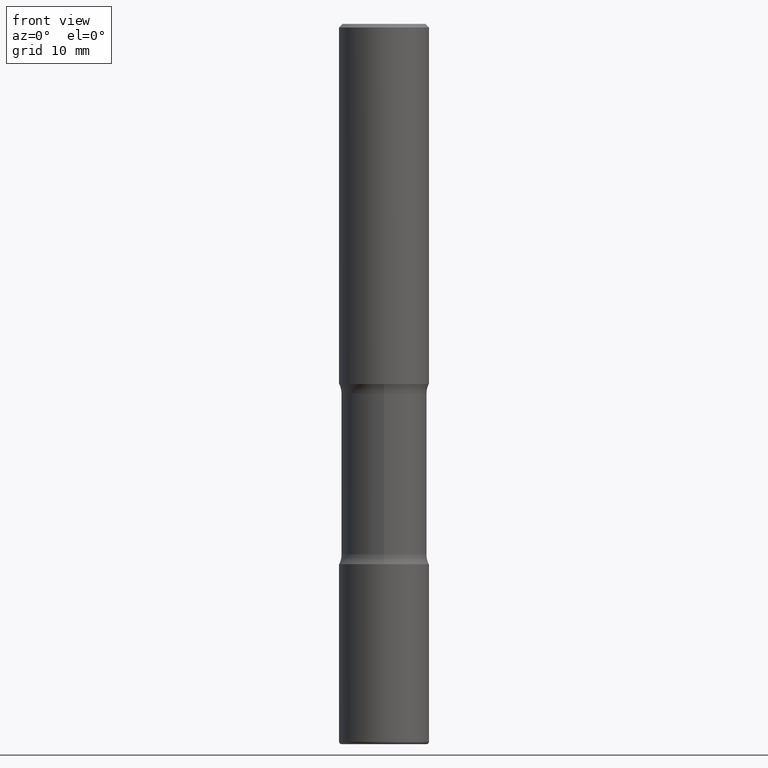
[diagram: clean part render]
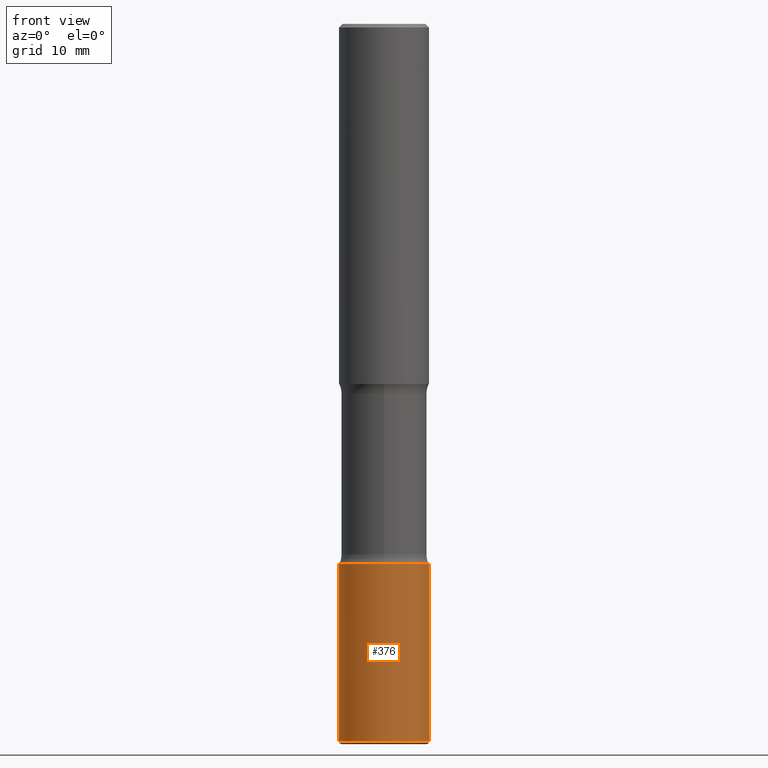
[diagram: same view with one face highlighted and labeled with its STEP entity id]
A machine part, front view. The second image highlights one B-rep face of the part: STEP entity #376.
In plain terms, the highlighted cylindrical surface (partial cylindrical patch) has radius 6.35 mm, axis along (-0, 0, 1).
Its self-contained STEP definition (entity closure, byte-faithful):
#27 = AXIS2_PLACEMENT_3D ( 'NONE', #379, #455, #446 ) ;
#31 = DIRECTION ( 'NONE',  ( -2.445468806185136877E-29, 3.491481338843145188E-15, 1.000000000000000000 ) ) ;
#43 = AXIS2_PLACEMENT_3D ( 'NONE', #382, #267, #87 ) ;
#50 = ORIENTED_EDGE ( 'NONE', *, *, #182, .T. ) ;
#74 = LINE ( 'NONE', #391, #125 ) ;
#76 = CARTESIAN_POINT ( 'NONE',  ( -0.2500000000000005551, -1.213719629588967887E-14, -3.984999999999999876 ) ) ;
#87 = DIRECTION ( 'NONE',  ( 1.000000000000000000, -6.982962677686270655E-15, 0.000000000000000000 ) ) ;
#93 = CYLINDRICAL_SURFACE ( 'NONE', #109, 0.2500000000000003331 ) ;
#109 = AXIS2_PLACEMENT_3D ( 'NONE', #271, #445, #140 ) ;
#125 = VECTOR ( 'NONE', #31, 39.37007874015748143 ) ;
#140 = DIRECTION ( 'NONE',  ( 1.000000000000000000, -6.982962677686266711E-15, 4.876176775795935793E-29 ) ) ;
#145 = EDGE_CURVE ( 'NONE', #424, #324, #461, .T. ) ;
#159 = CARTESIAN_POINT ( 'NONE',  ( 0.2500000000000005551, -1.565929380471150390E-14, -3.984999999999999876 ) ) ;
#161 = CARTESIAN_POINT ( 'NONE',  ( -0.2500000000000002776, -1.041764173650943238E-14, -3.000000000000000444 ) ) ;
#182 = EDGE_CURVE ( 'NONE', #492, #258, #290, .T. ) ;
#231 = DIRECTION ( 'NONE',  ( -2.445468806185136877E-29, 3.491481338843145188E-15, 1.000000000000000000 ) ) ;
#236 = EDGE_LOOP ( 'NONE', ( #531, #50, #420, #253 ) ) ;
#253 = ORIENTED_EDGE ( 'NONE', *, *, #145, .F. ) ;
#258 = VERTEX_POINT ( 'NONE', #159 ) ;
#267 = DIRECTION ( 'NONE',  ( -2.445468806185136597E-29, 3.491481338843145583E-15, 1.000000000000000000 ) ) ;
#271 = CARTESIAN_POINT ( 'NONE',  ( 0.000000000000000000, 0.000000000000000000, 0.000000000000000000 ) ) ;
#290 = CIRCLE ( 'NONE', #27, 0.2500000000000003886 ) ;
#294 = EDGE_CURVE ( 'NONE', #492, #424, #74, .T. ) ;
#324 = VERTEX_POINT ( 'NONE', #501 ) ;
#375 = VECTOR ( 'NONE', #231, 39.37007874015748143 ) ;
#376 = ADVANCED_FACE ( 'NONE', ( #412 ), #93, .T. ) ;
#379 = CARTESIAN_POINT ( 'NONE',  ( 9.745193192647769069E-29, -1.391355313528993407E-14, -3.984999999999999876 ) ) ;
#382 = CARTESIAN_POINT ( 'NONE',  ( 7.336406418555409790E-29, -1.047444401652943635E-14, -3.000000000000000444 ) ) ;
#391 = CARTESIAN_POINT ( 'NONE',  ( -0.2500000000000003331, 1.776356839400252831E-15, -1.229733772563727987E-29 ) ) ;
#412 = FACE_OUTER_BOUND ( 'NONE', #236, .T. ) ;
#420 = ORIENTED_EDGE ( 'NONE', *, *, #485, .T. ) ;
#424 = VERTEX_POINT ( 'NONE', #161 ) ;
#445 = DIRECTION ( 'NONE',  ( -2.445468806185136597E-29, 3.491481338843145583E-15, 1.000000000000000000 ) ) ;
#446 = DIRECTION ( 'NONE',  ( 1.000000000000000000, -6.982962677686267499E-15, 0.000000000000000000 ) ) ;
#455 = DIRECTION ( 'NONE',  ( -2.445468806185136597E-29, 3.491481338843145583E-15, 1.000000000000000000 ) ) ;
#461 = CIRCLE ( 'NONE', #43, 0.2500000000000002776 ) ;
#485 = EDGE_CURVE ( 'NONE', #258, #324, #522, .T. ) ;
#492 = VERTEX_POINT ( 'NONE', #76 ) ;
#499 = CARTESIAN_POINT ( 'NONE',  ( 0.2500000000000003331, -1.745740669421569044E-15, 1.219044193948985630E-29 ) ) ;
#501 = CARTESIAN_POINT ( 'NONE',  ( 0.2500000000000002776, -1.222018468595100619E-14, -3.000000000000000444 ) ) ;
#522 = LINE ( 'NONE', #499, #375 ) ;
#531 = ORIENTED_EDGE ( 'NONE', *, *, #294, .F. ) ;